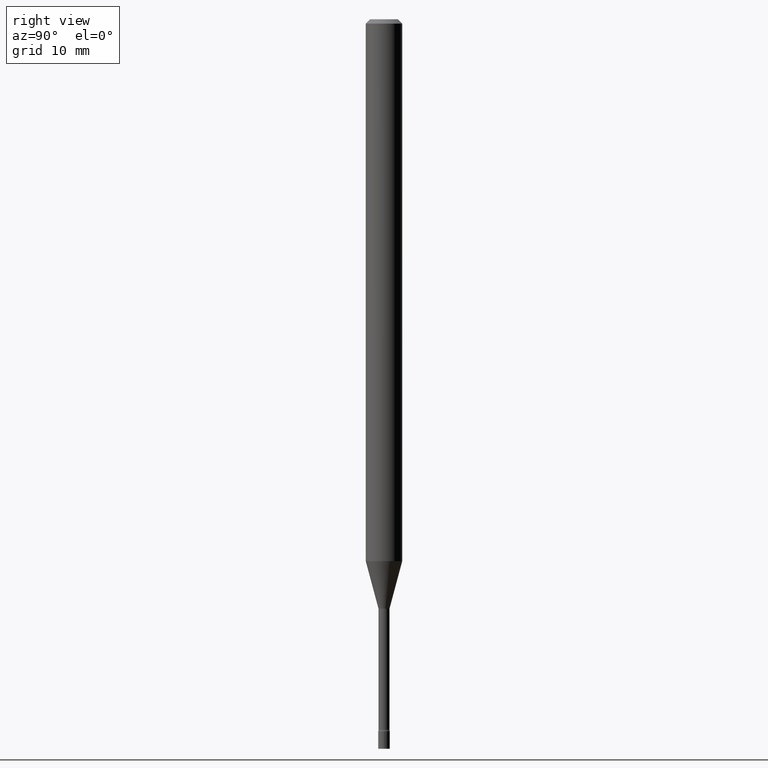
[diagram: clean part render]
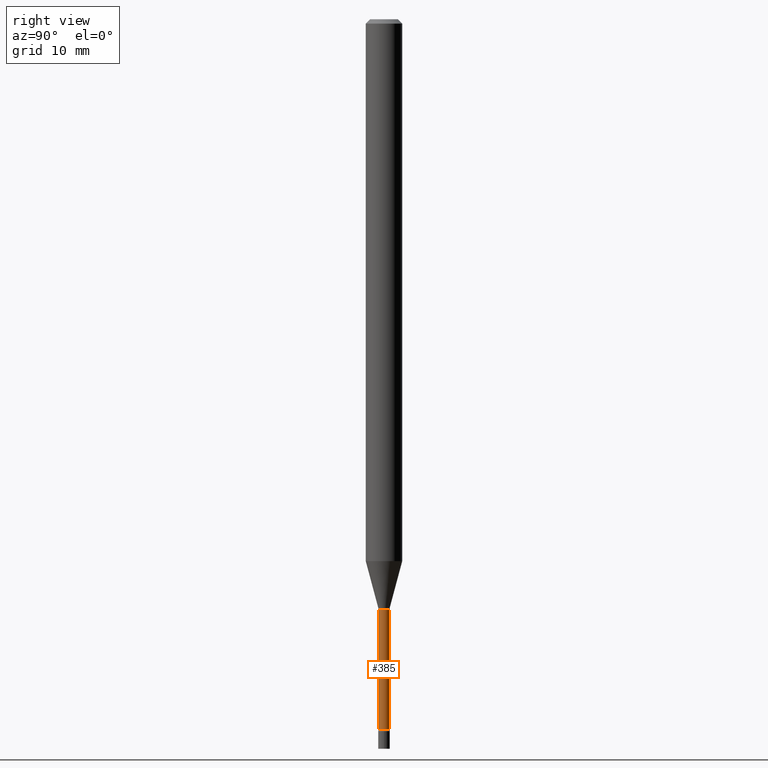
[diagram: same view with one face highlighted and labeled with its STEP entity id]
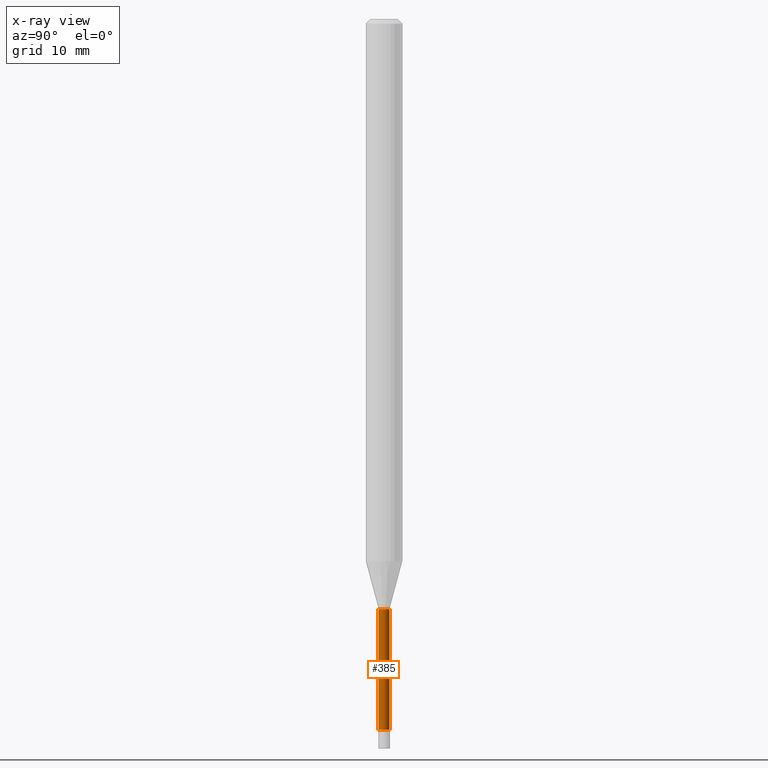
[diagram: x-ray of the same camera — body ghosted, the highlighted face saturated]
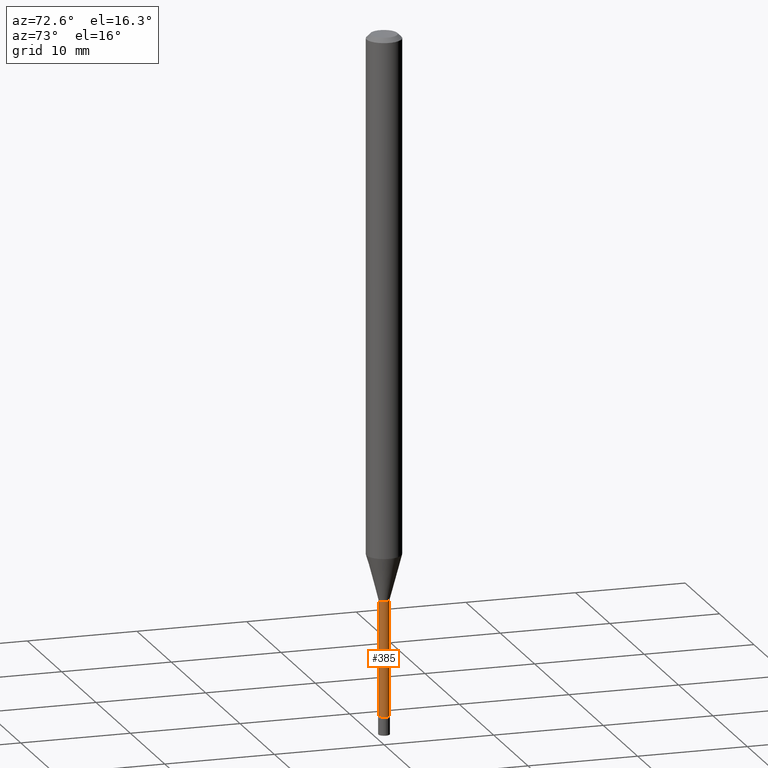
[diagram: same view with one face highlighted and labeled with its STEP entity id]
A machine part, right view. The second image highlights one B-rep face of the part: STEP entity #385.
The next image is the same camera in x-ray: the body ghosted, the highlighted face saturated — about 0% of this face is hidden behind the body in this view.
A second angle (auxiliary view) of the same face is appended — the face is thin or edge-on in the first view.
In plain terms, the highlighted cylindrical surface (edge-blend (fillet) strip) has radius 0.4775 mm, axis along (-0, 0, 1).
Its self-contained STEP definition (entity closure, byte-faithful):
#8 = AXIS2_PLACEMENT_3D ( 'NONE', #481, #90, #50 ) ;
#28 = CARTESIAN_POINT ( 'NONE',  ( -1.312796983404428095E-16, -0.01880000000000857374, -2.434121224617320944 ) ) ;
#34 = CYLINDRICAL_SURFACE ( 'NONE', #209, 0.01880000000000003543 ) ;
#49 = CARTESIAN_POINT ( 'NONE',  ( 1.378452907375191717E-16, 0.01879999999999157692, -2.434121224617320944 ) ) ;
#50 = DIRECTION ( 'NONE',  ( -6.982962677686265922E-15, -1.000000000000000000, 0.000000000000000000 ) ) ;
#51 = LINE ( 'NONE', #216, #403 ) ;
#68 = DIRECTION ( 'NONE',  ( -2.445424306159104546E-29, 3.491545065413207519E-15, 1.000000000000000000 ) ) ;
#90 = DIRECTION ( 'NONE',  ( -2.445424306159104546E-29, 3.491545065413207519E-15, 1.000000000000000000 ) ) ;
#93 = CARTESIAN_POINT ( 'NONE',  ( -1.312796983405020727E-16, -0.01880000000000003543, 6.564104722976843832E-17 ) ) ;
#117 = CIRCLE ( 'NONE', #131, 0.01880000000000007360 ) ;
#131 = AXIS2_PLACEMENT_3D ( 'NONE', #405, #68, #390 ) ;
#172 = FACE_OUTER_BOUND ( 'NONE', #191, .T. ) ;
#177 = VECTOR ( 'NONE', #245, 39.37007874015748143 ) ;
#191 = EDGE_LOOP ( 'NONE', ( #328, #307, #478, #268 ) ) ;
#194 = CARTESIAN_POINT ( 'NONE',  ( -1.312796983404523252E-16, -0.01880000000000705759, -2.021974787463811207 ) ) ;
#201 = CARTESIAN_POINT ( 'NONE',  ( 1.335820343229585471E-16, 0.01879999999999294041, -2.021974787463811207 ) ) ;
#209 = AXIS2_PLACEMENT_3D ( 'NONE', #483, #512, #317 ) ;
#216 = CARTESIAN_POINT ( 'NONE',  ( 1.335820343228990867E-16, 0.01880000000000003543, -6.564104722976843832E-17 ) ) ;
#245 = DIRECTION ( 'NONE',  ( -2.445424306159104546E-29, 3.491545065413207519E-15, 1.000000000000000000 ) ) ;
#268 = ORIENTED_EDGE ( 'NONE', *, *, #393, .F. ) ;
#299 = VERTEX_POINT ( 'NONE', #28 ) ;
#307 = ORIENTED_EDGE ( 'NONE', *, *, #402, .T. ) ;
#317 = DIRECTION ( 'NONE',  ( -6.982962677686267499E-15, -1.000000000000000000, 3.491545065413208308E-15 ) ) ;
#328 = ORIENTED_EDGE ( 'NONE', *, *, #361, .T. ) ;
#333 = DIRECTION ( 'NONE',  ( -2.445424306159104546E-29, 3.491545065413207519E-15, 1.000000000000000000 ) ) ;
#361 = EDGE_CURVE ( 'NONE', #299, #504, #117, .T. ) ;
#369 = VERTEX_POINT ( 'NONE', #194 ) ;
#385 = ADVANCED_FACE ( 'NONE', ( #172 ), #34, .T. ) ;
#390 = DIRECTION ( 'NONE',  ( -6.982962677686265922E-15, -1.000000000000000000, 0.000000000000000000 ) ) ;
#393 = EDGE_CURVE ( 'NONE', #299, #369, #453, .T. ) ;
#402 = EDGE_CURVE ( 'NONE', #504, #411, #51, .T. ) ;
#403 = VECTOR ( 'NONE', #333, 39.37007874015748143 ) ;
#405 = CARTESIAN_POINT ( 'NONE',  ( 5.952459206816961247E-29, -8.498843950430159487E-15, -2.434121224617320944 ) ) ;
#411 = VERTEX_POINT ( 'NONE', #201 ) ;
#439 = CIRCLE ( 'NONE', #8, 0.01879999999999999727 ) ;
#453 = LINE ( 'NONE', #93, #177 ) ;
#454 = EDGE_CURVE ( 'NONE', #369, #411, #439, .T. ) ;
#478 = ORIENTED_EDGE ( 'NONE', *, *, #454, .F. ) ;
#481 = CARTESIAN_POINT ( 'NONE',  ( 4.944586291704893259E-29, -7.059816091559188627E-15, -2.021974787463811207 ) ) ;
#483 = CARTESIAN_POINT ( 'NONE',  ( 0.000000000000000000, 0.000000000000000000, 0.000000000000000000 ) ) ;
#504 = VERTEX_POINT ( 'NONE', #49 ) ;
#512 = DIRECTION ( 'NONE',  ( -2.445424306159104546E-29, 3.491545065413207519E-15, 1.000000000000000000 ) ) ;